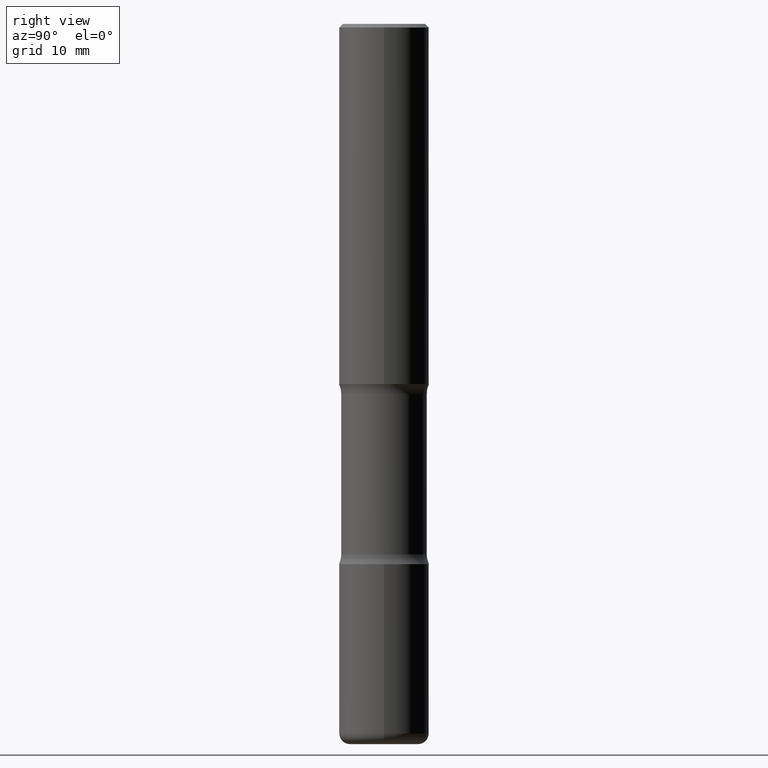
[diagram: clean part render]
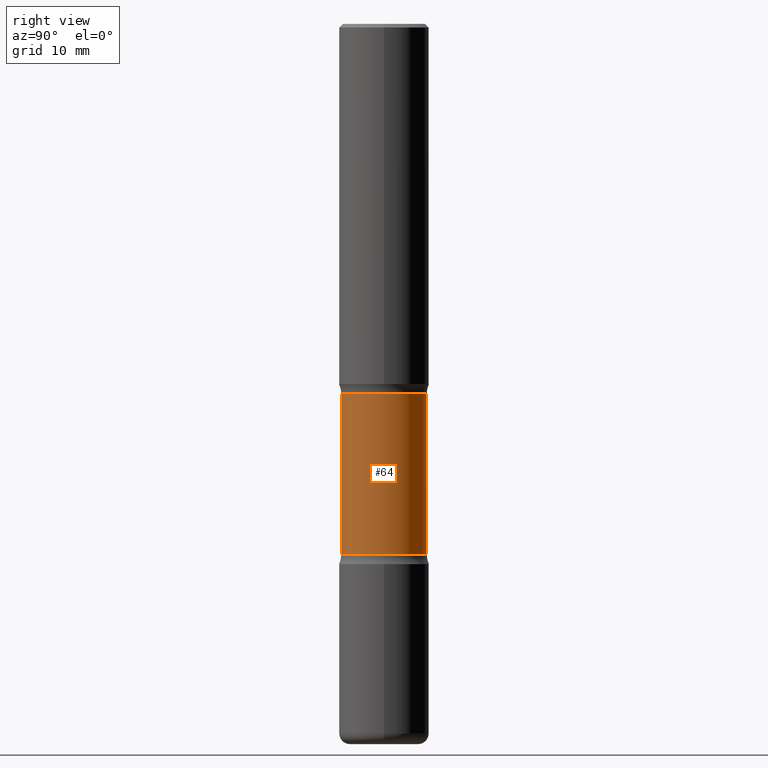
[diagram: same view with one face highlighted and labeled with its STEP entity id]
A machine part, right view. The second image highlights one B-rep face of the part: STEP entity #64.
In plain terms, the highlighted cylindrical surface (partial cylindrical patch) has radius 6.0325 mm, axis along (0, -0, -1).
Its self-contained STEP definition (entity closure, byte-faithful):
#14 = CARTESIAN_POINT ( 'NONE',  ( 1.658453635950538436E-15, 0.2374999999999928557, -2.054486236794259568 ) ) ;
#38 = CARTESIAN_POINT ( 'NONE',  ( -1.672246386956763723E-15, -0.2375000000000074274, -2.054486236794258236 ) ) ;
#47 = CIRCLE ( 'NONE', #104, 0.2375000000000001277 ) ;
#52 = DIRECTION ( 'NONE',  ( 2.530378452311521502E-29, -3.369885892833230986E-15, -1.000000000000000000 ) ) ;
#64 = ADVANCED_FACE ( 'NONE', ( #455 ), #148, .T. ) ;
#78 = DIRECTION ( 'NONE',  ( 2.530378452311521502E-29, -3.369885892833230592E-15, -1.000000000000000000 ) ) ;
#104 = AXIS2_PLACEMENT_3D ( 'NONE', #407, #52, #365 ) ;
#145 = CARTESIAN_POINT ( 'NONE',  ( 7.198535619023675570E-29, -1.029083161580289368E-14, -2.945513763205741320 ) ) ;
#148 = CYLINDRICAL_SURFACE ( 'NONE', #381, 0.2375000000000000999 ) ;
#154 = VERTEX_POINT ( 'NONE', #385 ) ;
#171 = ORIENTED_EDGE ( 'NONE', *, *, #316, .T. ) ;
#174 = VERTEX_POINT ( 'NONE', #38 ) ;
#192 = DIRECTION ( 'NONE',  ( 2.530378452311521502E-29, -3.369885892833230986E-15, -1.000000000000000000 ) ) ;
#218 = ORIENTED_EDGE ( 'NONE', *, *, #420, .T. ) ;
#227 = DIRECTION ( 'NONE',  ( 6.982962677686265133E-15, 1.000000000000000000, -2.300503573612010239E-15 ) ) ;
#253 = ORIENTED_EDGE ( 'NONE', *, *, #271, .F. ) ;
#254 = VECTOR ( 'NONE', #78, 39.37007874015748143 ) ;
#258 = CARTESIAN_POINT ( 'NONE',  ( -1.629368274470640415E-15, -0.2375000000000139222, -3.999999999999999556 ) ) ;
#260 = EDGE_LOOP ( 'NONE', ( #218, #171, #452, #253 ) ) ;
#271 = EDGE_CURVE ( 'NONE', #302, #509, #287, .T. ) ;
#281 = CARTESIAN_POINT ( 'NONE',  ( 9.866784870866931853E-29, -1.384432990936266734E-14, -4.000000000000000000 ) ) ;
#287 = LINE ( 'NONE', #465, #254 ) ;
#302 = VERTEX_POINT ( 'NONE', #14 ) ;
#316 = EDGE_CURVE ( 'NONE', #174, #154, #393, .T. ) ;
#329 = DIRECTION ( 'NONE',  ( 2.530378452311521502E-29, -3.369885892833230986E-15, -1.000000000000000000 ) ) ;
#365 = DIRECTION ( 'NONE',  ( 6.982962677686265133E-15, 1.000000000000000000, -3.450755360418014766E-15 ) ) ;
#381 = AXIS2_PLACEMENT_3D ( 'NONE', #281, #192, #227 ) ;
#385 = CARTESIAN_POINT ( 'NONE',  ( -1.672246386956739071E-15, -0.2375000000000103417, -2.945513763205740876 ) ) ;
#391 = DIRECTION ( 'NONE',  ( 2.530378452311521502E-29, -3.369885892833230592E-15, -1.000000000000000000 ) ) ;
#393 = LINE ( 'NONE', #258, #418 ) ;
#407 = CARTESIAN_POINT ( 'NONE',  ( 4.943898765775623630E-29, -7.288170524422749615E-15, -2.054486236794258680 ) ) ;
#418 = VECTOR ( 'NONE', #391, 39.37007874015748143 ) ;
#420 = EDGE_CURVE ( 'NONE', #302, #174, #47, .T. ) ;
#452 = ORIENTED_EDGE ( 'NONE', *, *, #476, .F. ) ;
#455 = FACE_OUTER_BOUND ( 'NONE', #260, .T. ) ;
#465 = CARTESIAN_POINT ( 'NONE',  ( 1.658453635950587543E-15, 0.2374999999999862776, -4.000000000000000888 ) ) ;
#476 = EDGE_CURVE ( 'NONE', #509, #154, #489, .T. ) ;
#489 = CIRCLE ( 'NONE', #529, 0.2375000000000000722 ) ;
#491 = DIRECTION ( 'NONE',  ( 6.982962677686265133E-15, 1.000000000000000000, -2.300503573612010239E-15 ) ) ;
#509 = VERTEX_POINT ( 'NONE', #514 ) ;
#514 = CARTESIAN_POINT ( 'NONE',  ( 1.658453635950560525E-15, 0.2374999999999897748, -2.945513763205741764 ) ) ;
#529 = AXIS2_PLACEMENT_3D ( 'NONE', #145, #329, #491 ) ;